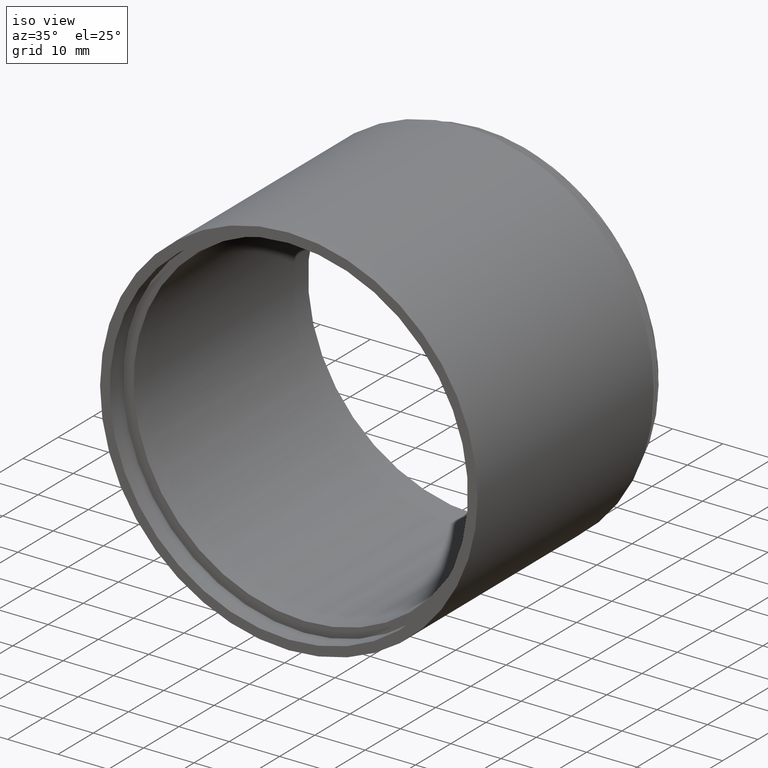
[diagram: clean part render]
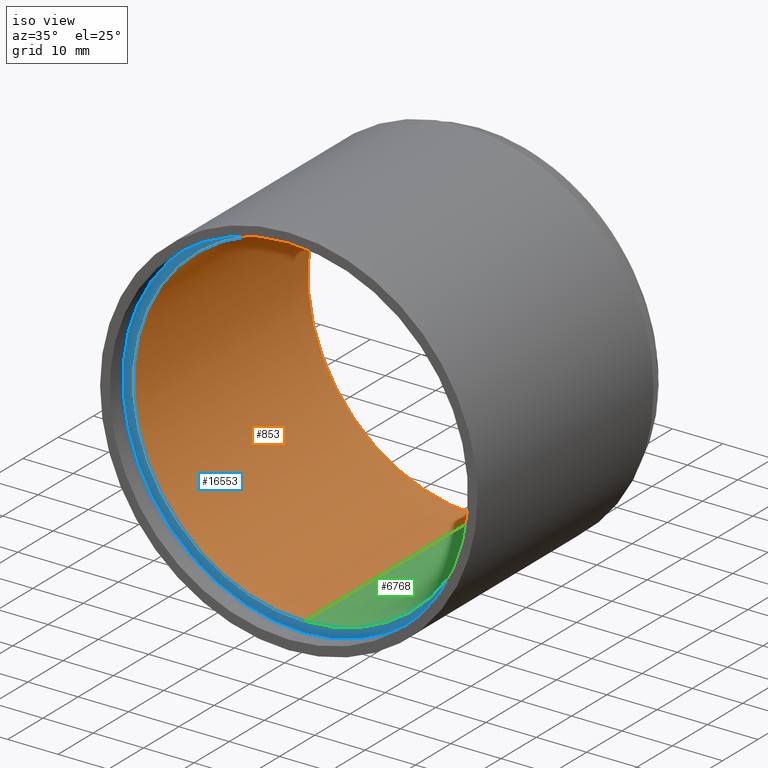
[diagram: same view with three faces highlighted in distinct colors, each labeled with its STEP entity id]
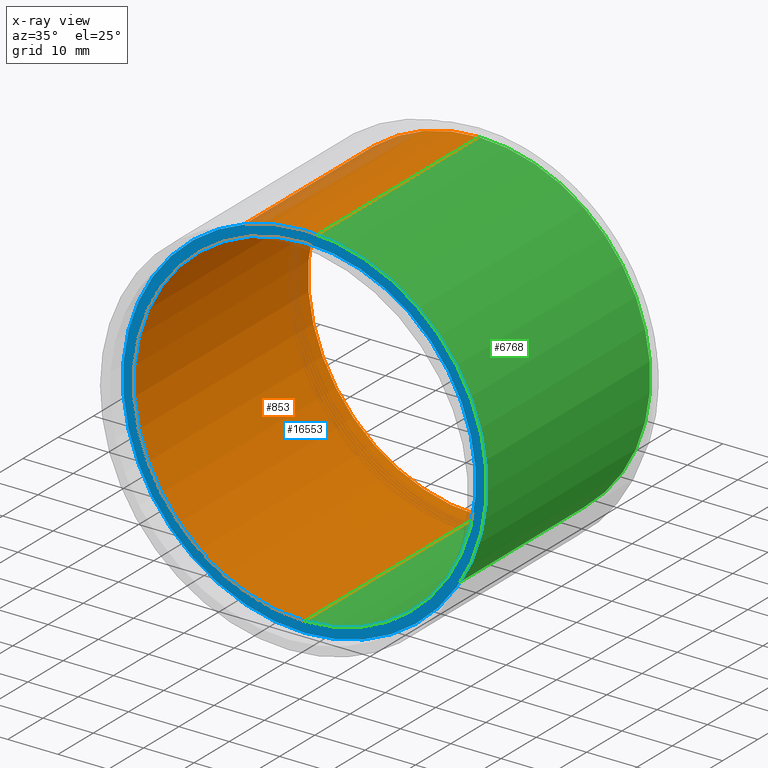
[diagram: x-ray of the same camera — body ghosted, the three highlighted faces saturated]
A machine part, iso view with three faces highlighted in distinct colors.
The next image is the same camera in x-ray (body ghosted, the three faces saturated) — at least one of them is partly hidden behind the body in this view.
Their STEP definitions:

[orange] entity #853 — the highlighted cylindrical surface (partial cylindrical patch) has radius 34 mm, axis along (-0, -1, -0).
#261 = VECTOR ( 'NONE', #6113, 1000.000000000000000 ) ;
#546 = VERTEX_POINT ( 'NONE', #12875 ) ;
#853 = ADVANCED_FACE ( 'NONE', ( #11167 ), #3239, .F. ) ;
#1029 = LINE ( 'NONE', #16487, #261 ) ;
#1377 = AXIS2_PLACEMENT_3D ( 'NONE', #3494, #9910, #8653 ) ;
#1540 = DIRECTION ( 'NONE',  ( -0.0000000000000000000, -1.000000000000000000, -0.0000000000000000000 ) ) ;
#1978 = VERTEX_POINT ( 'NONE', #5425 ) ;
#2546 = LINE ( 'NONE', #6279, #2694 ) ;
#2634 = EDGE_CURVE ( 'NONE', #5405, #546, #12663, .T. ) ;
#2694 = VECTOR ( 'NONE', #7539, 1000.000000000000000 ) ;
#3239 = CYLINDRICAL_SURFACE ( 'NONE', #11832, 34.00000000000002842 ) ;
#3494 = CARTESIAN_POINT ( 'NONE',  ( 0.0000000000000000000, 55.20194186206709475, 0.0000000000000000000 ) ) ;
#4164 = ORIENTED_EDGE ( 'NONE', *, *, #13450, .F. ) ;
#4596 = CARTESIAN_POINT ( 'NONE',  ( 0.0000000000000000000, 0.0000000000000000000, 0.0000000000000000000 ) ) ;
#5405 = VERTEX_POINT ( 'NONE', #15710 ) ;
#5425 = CARTESIAN_POINT ( 'NONE',  ( 4.163799117101004504E-15, 55.20194186206709475, 34.00000000000002842 ) ) ;
#6113 = DIRECTION ( 'NONE',  ( -0.0000000000000000000, -1.000000000000000000, -0.0000000000000000000 ) ) ;
#6279 = CARTESIAN_POINT ( 'NONE',  ( 0.0000000000000000000, 0.0000000000000000000, -34.00000000000002842 ) ) ;
#7539 = DIRECTION ( 'NONE',  ( -0.0000000000000000000, -1.000000000000000000, -0.0000000000000000000 ) ) ;
#7968 = VERTEX_POINT ( 'NONE', #16503 ) ;
#8492 = ORIENTED_EDGE ( 'NONE', *, *, #2634, .T. ) ;
#8653 = DIRECTION ( 'NONE',  ( 0.0000000000000000000, 0.0000000000000000000, -1.000000000000000000 ) ) ;
#8654 = DIRECTION ( 'NONE',  ( 0.0000000000000000000, 0.0000000000000000000, -1.000000000000000000 ) ) ;
#8848 = ORIENTED_EDGE ( 'NONE', *, *, #11797, .F. ) ;
#9134 = EDGE_CURVE ( 'NONE', #1978, #5405, #1029, .T. ) ;
#9910 = DIRECTION ( 'NONE',  ( -0.0000000000000000000, -1.000000000000000000, -0.0000000000000000000 ) ) ;
#10659 = ORIENTED_EDGE ( 'NONE', *, *, #9134, .T. ) ;
#11167 = FACE_OUTER_BOUND ( 'NONE', #15537, .T. ) ;
#11755 = CARTESIAN_POINT ( 'NONE',  ( 0.0000000000000000000, 5.701941862067100075, 0.0000000000000000000 ) ) ;
#11797 = EDGE_CURVE ( 'NONE', #1978, #7968, #15398, .T. ) ;
#11832 = AXIS2_PLACEMENT_3D ( 'NONE', #4596, #12365, #8654 ) ;
#12365 = DIRECTION ( 'NONE',  ( -0.0000000000000000000, -1.000000000000000000, -0.0000000000000000000 ) ) ;
#12663 = CIRCLE ( 'NONE', #12925, 34.00000000000002842 ) ;
#12875 = CARTESIAN_POINT ( 'NONE',  ( 0.0000000000000000000, 5.701941862067100075, -34.00000000000002842 ) ) ;
#12925 = AXIS2_PLACEMENT_3D ( 'NONE', #11755, #1540, #15808 ) ;
#13450 = EDGE_CURVE ( 'NONE', #7968, #546, #2546, .T. ) ;
#15398 = CIRCLE ( 'NONE', #1377, 34.00000000000002842 ) ;
#15537 = EDGE_LOOP ( 'NONE', ( #8848, #10659, #8492, #4164 ) ) ;
#15710 = CARTESIAN_POINT ( 'NONE',  ( 4.163799117101004504E-15, 5.701941862067100075, 34.00000000000002842 ) ) ;
#15808 = DIRECTION ( 'NONE',  ( 0.0000000000000000000, 0.0000000000000000000, -1.000000000000000000 ) ) ;
#16487 = CARTESIAN_POINT ( 'NONE',  ( 4.163799117101004504E-15, 0.0000000000000000000, 34.00000000000002842 ) ) ;
#16503 = CARTESIAN_POINT ( 'NONE',  ( 0.0000000000000000000, 55.20194186206709475, -34.00000000000002842 ) ) ;

[blue] entity #16553 — the highlighted planar face has unit normal (0, 1, 0).
#330 = EDGE_CURVE ( 'NONE', #11927, #3845, #9408, .T. ) ;
#364 = ORIENTED_EDGE ( 'NONE', *, *, #2874, .F. ) ;
#401 = ORIENTED_EDGE ( 'NONE', *, *, #13261, .T. ) ;
#546 = VERTEX_POINT ( 'NONE', #12875 ) ;
#666 = CARTESIAN_POINT ( 'NONE',  ( 4.420974944922219525E-15, 5.701941862067100075, 36.10000000000223963 ) ) ;
#1540 = DIRECTION ( 'NONE',  ( -0.0000000000000000000, -1.000000000000000000, -0.0000000000000000000 ) ) ;
#1842 = CARTESIAN_POINT ( 'NONE',  ( 0.0000000000000000000, 5.701941862067100075, -36.10000000000223963 ) ) ;
#2214 = FACE_OUTER_BOUND ( 'NONE', #12232, .T. ) ;
#2296 = DIRECTION ( 'NONE',  ( 0.0000000000000000000, 0.0000000000000000000, -1.000000000000000000 ) ) ;
#2540 = CARTESIAN_POINT ( 'NONE',  ( -34.00000000000002842, 5.701941862067100075, 0.0000000000000000000 ) ) ;
#2634 = EDGE_CURVE ( 'NONE', #5405, #546, #12663, .T. ) ;
#2874 = EDGE_CURVE ( 'NONE', #546, #5405, #13200, .T. ) ;
#3150 = CARTESIAN_POINT ( 'NONE',  ( 0.0000000000000000000, 5.701941862067100075, 0.0000000000000000000 ) ) ;
#3845 = VERTEX_POINT ( 'NONE', #666 ) ;
#4833 = DIRECTION ( 'NONE',  ( 0.0000000000000000000, 0.0000000000000000000, -1.000000000000000000 ) ) ;
#5405 = VERTEX_POINT ( 'NONE', #15710 ) ;
#5416 = AXIS2_PLACEMENT_3D ( 'NONE', #2540, #8800, #9901 ) ;
#6916 = ORIENTED_EDGE ( 'NONE', *, *, #2634, .F. ) ;
#8800 = DIRECTION ( 'NONE',  ( 0.0000000000000000000, 1.000000000000000000, 0.0000000000000000000 ) ) ;
#8881 = PLANE ( 'NONE',  #5416 ) ;
#9408 = CIRCLE ( 'NONE', #16144, 36.10000000000223963 ) ;
#9901 = DIRECTION ( 'NONE',  ( 0.0000000000000000000, -0.0000000000000000000, 1.000000000000000000 ) ) ;
#9904 = CARTESIAN_POINT ( 'NONE',  ( 0.0000000000000000000, 5.701941862067100075, 0.0000000000000000000 ) ) ;
#10196 = CIRCLE ( 'NONE', #14019, 36.10000000000223963 ) ;
#10760 = AXIS2_PLACEMENT_3D ( 'NONE', #14102, #12594, #4833 ) ;
#11755 = CARTESIAN_POINT ( 'NONE',  ( 0.0000000000000000000, 5.701941862067100075, 0.0000000000000000000 ) ) ;
#11824 = EDGE_LOOP ( 'NONE', ( #364, #6916 ) ) ;
#11927 = VERTEX_POINT ( 'NONE', #1842 ) ;
#12232 = EDGE_LOOP ( 'NONE', ( #16398, #401 ) ) ;
#12594 = DIRECTION ( 'NONE',  ( -0.0000000000000000000, -1.000000000000000000, -0.0000000000000000000 ) ) ;
#12663 = CIRCLE ( 'NONE', #12925, 34.00000000000002842 ) ;
#12875 = CARTESIAN_POINT ( 'NONE',  ( 0.0000000000000000000, 5.701941862067100075, -34.00000000000002842 ) ) ;
#12925 = AXIS2_PLACEMENT_3D ( 'NONE', #11755, #1540, #15808 ) ;
#13200 = CIRCLE ( 'NONE', #10760, 34.00000000000002842 ) ;
#13261 = EDGE_CURVE ( 'NONE', #3845, #11927, #10196, .T. ) ;
#14019 = AXIS2_PLACEMENT_3D ( 'NONE', #3150, #16326, #14886 ) ;
#14102 = CARTESIAN_POINT ( 'NONE',  ( 0.0000000000000000000, 5.701941862067100075, 0.0000000000000000000 ) ) ;
#14886 = DIRECTION ( 'NONE',  ( 0.0000000000000000000, 0.0000000000000000000, -1.000000000000000000 ) ) ;
#15292 = FACE_BOUND ( 'NONE', #11824, .T. ) ;
#15710 = CARTESIAN_POINT ( 'NONE',  ( 4.163799117101004504E-15, 5.701941862067100075, 34.00000000000002842 ) ) ;
#15808 = DIRECTION ( 'NONE',  ( 0.0000000000000000000, 0.0000000000000000000, -1.000000000000000000 ) ) ;
#16144 = AXIS2_PLACEMENT_3D ( 'NONE', #9904, #16409, #2296 ) ;
#16326 = DIRECTION ( 'NONE',  ( -0.0000000000000000000, -1.000000000000000000, -0.0000000000000000000 ) ) ;
#16398 = ORIENTED_EDGE ( 'NONE', *, *, #330, .T. ) ;
#16409 = DIRECTION ( 'NONE',  ( -0.0000000000000000000, -1.000000000000000000, -0.0000000000000000000 ) ) ;
#16553 = ADVANCED_FACE ( 'NONE', ( #15292, #2214 ), #8881, .F. ) ;

[green] entity #6768 — the highlighted cylindrical surface (partial cylindrical patch) has radius 34 mm, axis along (-0, -1, -0).
#261 = VECTOR ( 'NONE', #6113, 1000.000000000000000 ) ;
#546 = VERTEX_POINT ( 'NONE', #12875 ) ;
#1029 = LINE ( 'NONE', #16487, #261 ) ;
#1564 = DIRECTION ( 'NONE',  ( 0.0000000000000000000, 0.0000000000000000000, -1.000000000000000000 ) ) ;
#1963 = DIRECTION ( 'NONE',  ( 0.0000000000000000000, 0.0000000000000000000, -1.000000000000000000 ) ) ;
#1978 = VERTEX_POINT ( 'NONE', #5425 ) ;
#2546 = LINE ( 'NONE', #6279, #2694 ) ;
#2694 = VECTOR ( 'NONE', #7539, 1000.000000000000000 ) ;
#2874 = EDGE_CURVE ( 'NONE', #546, #5405, #13200, .T. ) ;
#3000 = DIRECTION ( 'NONE',  ( -0.0000000000000000000, -1.000000000000000000, -0.0000000000000000000 ) ) ;
#3235 = CIRCLE ( 'NONE', #4592, 34.00000000000002842 ) ;
#4592 = AXIS2_PLACEMENT_3D ( 'NONE', #7456, #9653, #1963 ) ;
#4620 = ORIENTED_EDGE ( 'NONE', *, *, #13450, .T. ) ;
#4833 = DIRECTION ( 'NONE',  ( 0.0000000000000000000, 0.0000000000000000000, -1.000000000000000000 ) ) ;
#4954 = ORIENTED_EDGE ( 'NONE', *, *, #9134, .F. ) ;
#5299 = CARTESIAN_POINT ( 'NONE',  ( 0.0000000000000000000, 0.0000000000000000000, 0.0000000000000000000 ) ) ;
#5405 = VERTEX_POINT ( 'NONE', #15710 ) ;
#5425 = CARTESIAN_POINT ( 'NONE',  ( 4.163799117101004504E-15, 55.20194186206709475, 34.00000000000002842 ) ) ;
#6113 = DIRECTION ( 'NONE',  ( -0.0000000000000000000, -1.000000000000000000, -0.0000000000000000000 ) ) ;
#6279 = CARTESIAN_POINT ( 'NONE',  ( 0.0000000000000000000, 0.0000000000000000000, -34.00000000000002842 ) ) ;
#6768 = ADVANCED_FACE ( 'NONE', ( #8243 ), #7910, .F. ) ;
#7456 = CARTESIAN_POINT ( 'NONE',  ( 0.0000000000000000000, 55.20194186206709475, 0.0000000000000000000 ) ) ;
#7539 = DIRECTION ( 'NONE',  ( -0.0000000000000000000, -1.000000000000000000, -0.0000000000000000000 ) ) ;
#7910 = CYLINDRICAL_SURFACE ( 'NONE', #14548, 34.00000000000002842 ) ;
#7968 = VERTEX_POINT ( 'NONE', #16503 ) ;
#8243 = FACE_OUTER_BOUND ( 'NONE', #10123, .T. ) ;
#9134 = EDGE_CURVE ( 'NONE', #1978, #5405, #1029, .T. ) ;
#9653 = DIRECTION ( 'NONE',  ( -0.0000000000000000000, -1.000000000000000000, -0.0000000000000000000 ) ) ;
#10123 = EDGE_LOOP ( 'NONE', ( #4954, #11330, #4620, #11081 ) ) ;
#10760 = AXIS2_PLACEMENT_3D ( 'NONE', #14102, #12594, #4833 ) ;
#11081 = ORIENTED_EDGE ( 'NONE', *, *, #2874, .T. ) ;
#11330 = ORIENTED_EDGE ( 'NONE', *, *, #13365, .F. ) ;
#12594 = DIRECTION ( 'NONE',  ( -0.0000000000000000000, -1.000000000000000000, -0.0000000000000000000 ) ) ;
#12875 = CARTESIAN_POINT ( 'NONE',  ( 0.0000000000000000000, 5.701941862067100075, -34.00000000000002842 ) ) ;
#13200 = CIRCLE ( 'NONE', #10760, 34.00000000000002842 ) ;
#13365 = EDGE_CURVE ( 'NONE', #7968, #1978, #3235, .T. ) ;
#13450 = EDGE_CURVE ( 'NONE', #7968, #546, #2546, .T. ) ;
#14102 = CARTESIAN_POINT ( 'NONE',  ( 0.0000000000000000000, 5.701941862067100075, 0.0000000000000000000 ) ) ;
#14548 = AXIS2_PLACEMENT_3D ( 'NONE', #5299, #3000, #1564 ) ;
#15710 = CARTESIAN_POINT ( 'NONE',  ( 4.163799117101004504E-15, 5.701941862067100075, 34.00000000000002842 ) ) ;
#16487 = CARTESIAN_POINT ( 'NONE',  ( 4.163799117101004504E-15, 0.0000000000000000000, 34.00000000000002842 ) ) ;
#16503 = CARTESIAN_POINT ( 'NONE',  ( 0.0000000000000000000, 55.20194186206709475, -34.00000000000002842 ) ) ;